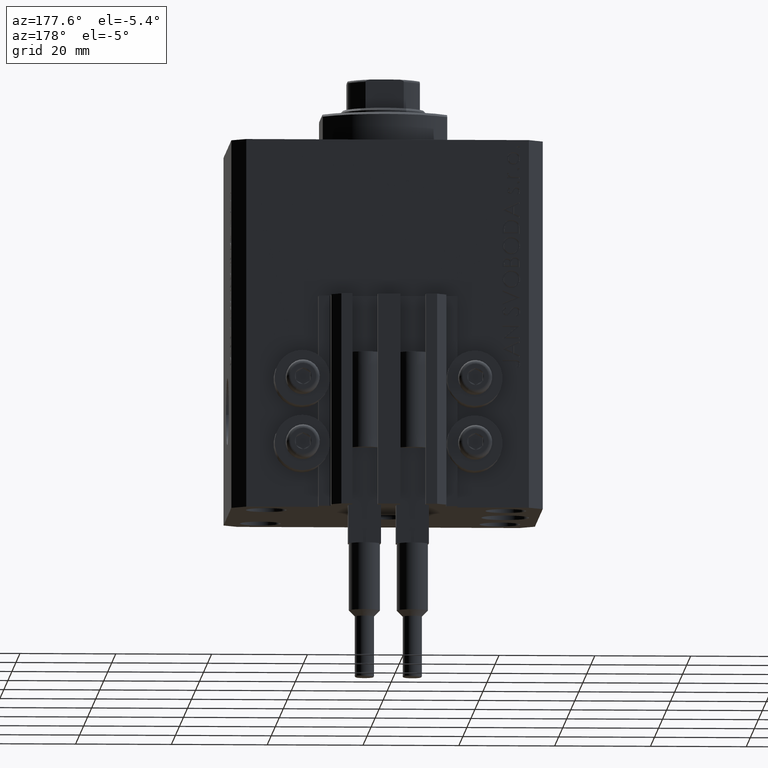
[diagram: clean part render]
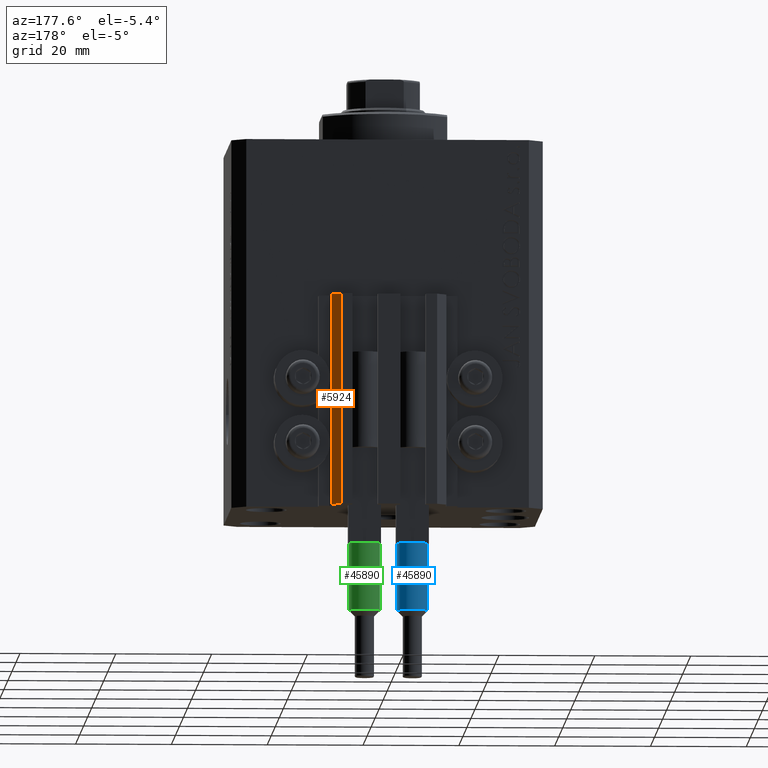
[diagram: same view with three faces highlighted in distinct colors, each labeled with its STEP entity id]
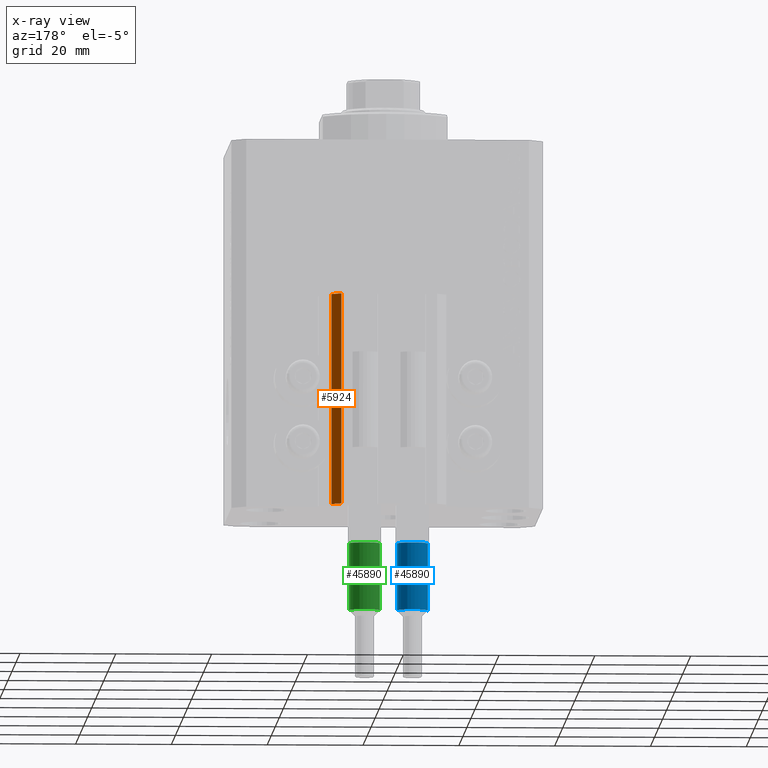
[diagram: x-ray of the same camera — body ghosted, the three highlighted faces saturated]
A machine part, auxiliary view with three faces highlighted in distinct colors.
The next image is the same camera in x-ray (body ghosted, the three faces saturated) — at least one of them is partly hidden behind the body in this view.
Their STEP definitions:

[orange] entity #5924 — the highlighted planar face has unit normal (0.7071, 0.7071, 0).
#1865 = CARTESIAN_POINT ( 'NONE',  ( 12.00000000000000178, 28.49999999999950973, -77.00000000000000000 ) ) ;
#3240 = VERTEX_POINT ( 'NONE', #24958 ) ;
#4289 = CARTESIAN_POINT ( 'NONE',  ( 12.00000000000000178, 28.49999999999950973, -33.00000000000000000 ) ) ;
#5306 = VECTOR ( 'NONE', #35090, 1000.000000000000000 ) ;
#5924 = ADVANCED_FACE ( 'NONE', ( #11558 ), #48184, .T. ) ;
#6226 = VERTEX_POINT ( 'NONE', #14928 ) ;
#7648 = DIRECTION ( 'NONE',  ( 0.7071067811865442421, 0.7071067811865509034, -0.000000000000000000 ) ) ;
#8514 = EDGE_CURVE ( 'NONE', #6226, #45800, #23628, .T. ) ;
#10564 = EDGE_CURVE ( 'NONE', #23452, #3240, #16522, .T. ) ;
#11558 = FACE_OUTER_BOUND ( 'NONE', #21356, .T. ) ;
#12060 = ORIENTED_EDGE ( 'NONE', *, *, #10564, .F. ) ;
#12344 = VECTOR ( 'NONE', #38965, 1000.000000000000000 ) ;
#14751 = CARTESIAN_POINT ( 'NONE',  ( 12.00000000000000178, 28.49999999999950973, -77.00000000000000000 ) ) ;
#14807 = DIRECTION ( 'NONE',  ( -0.7071067811865507924, 0.7071067811865441310, 0.000000000000000000 ) ) ;
#14928 = CARTESIAN_POINT ( 'NONE',  ( 9.999999999999994671, 30.49999999999949551, -77.00000000000000000 ) ) ;
#16522 = LINE ( 'NONE', #1865, #12344 ) ;
#18644 = DIRECTION ( 'NONE',  ( -0.7071067811865507924, 0.7071067811865441310, 0.000000000000000000 ) ) ;
#18747 = ORIENTED_EDGE ( 'NONE', *, *, #8514, .T. ) ;
#19119 = EDGE_CURVE ( 'NONE', #23452, #6226, #19514, .T. ) ;
#19514 = LINE ( 'NONE', #29791, #45071 ) ;
#21312 = ORIENTED_EDGE ( 'NONE', *, *, #21841, .F. ) ;
#21356 = EDGE_LOOP ( 'NONE', ( #21312, #12060, #43227, #18747 ) ) ;
#21841 = EDGE_CURVE ( 'NONE', #3240, #45800, #22603, .T. ) ;
#22603 = LINE ( 'NONE', #4289, #38157 ) ;
#22933 = DIRECTION ( 'NONE',  ( -0.7071067811865507924, 0.7071067811865441310, 0.000000000000000000 ) ) ;
#23452 = VERTEX_POINT ( 'NONE', #25862 ) ;
#23628 = LINE ( 'NONE', #27763, #5306 ) ;
#24958 = CARTESIAN_POINT ( 'NONE',  ( 12.00000000000000178, 28.49999999999950973, -33.00000000000000000 ) ) ;
#25862 = CARTESIAN_POINT ( 'NONE',  ( 12.00000000000000178, 28.49999999999950973, -77.00000000000000000 ) ) ;
#26287 = AXIS2_PLACEMENT_3D ( 'NONE', #14751, #7648, #18644 ) ;
#27763 = CARTESIAN_POINT ( 'NONE',  ( 9.999999999999994671, 30.49999999999949551, -77.00000000000000000 ) ) ;
#29791 = CARTESIAN_POINT ( 'NONE',  ( 12.00000000000000178, 28.49999999999950973, -77.00000000000000000 ) ) ;
#35090 = DIRECTION ( 'NONE',  ( 0.000000000000000000, 0.000000000000000000, 1.000000000000000000 ) ) ;
#38157 = VECTOR ( 'NONE', #14807, 1000.000000000000000 ) ;
#38965 = DIRECTION ( 'NONE',  ( 0.000000000000000000, 0.000000000000000000, 1.000000000000000000 ) ) ;
#43227 = ORIENTED_EDGE ( 'NONE', *, *, #19119, .T. ) ;
#44124 = CARTESIAN_POINT ( 'NONE',  ( 9.999999999999994671, 30.49999999999949551, -33.00000000000000000 ) ) ;
#45071 = VECTOR ( 'NONE', #22933, 1000.000000000000000 ) ;
#45800 = VERTEX_POINT ( 'NONE', #44124 ) ;
#48184 = PLANE ( 'NONE',  #26287 ) ;

[blue] entity #45890 — the highlighted cylindrical surface (edge-blend (fillet) strip) has radius 3.25 mm, axis along (-0, -0, 1).
#454 = CARTESIAN_POINT ( 'NONE',  ( 0.000000000000000000, 0.000000000000000000, 53.99999999999998579 ) ) ;
#707 = CARTESIAN_POINT ( 'NONE',  ( -3.250000000000000444, 0.000000000000000000, 40.00000000000000000 ) ) ;
#812 = EDGE_CURVE ( 'NONE', #6651, #42726, #28292, .T. ) ;
#1788 = ORIENTED_EDGE ( 'NONE', *, *, #4661, .T. ) ;
#3568 = VECTOR ( 'NONE', #10389, 1000.000000000000000 ) ;
#4661 = EDGE_CURVE ( 'NONE', #36638, #44242, #44927, .T. ) ;
#5337 = VECTOR ( 'NONE', #20641, 1000.000000000000000 ) ;
#5755 = CARTESIAN_POINT ( 'NONE',  ( 3.250000000000000444, 3.980102097228898231E-16, 56.00000000000000000 ) ) ;
#6431 = DIRECTION ( 'NONE',  ( 0.000000000000000000, 0.000000000000000000, 1.000000000000000000 ) ) ;
#6651 = VERTEX_POINT ( 'NONE', #42885 ) ;
#7557 = EDGE_CURVE ( 'NONE', #44242, #30755, #8404, .T. ) ;
#7656 = EDGE_CURVE ( 'NONE', #30755, #45158, #15407, .T. ) ;
#8404 = CIRCLE ( 'NONE', #32540, 3.250000000000000444 ) ;
#8771 = DIRECTION ( 'NONE',  ( 0.000000000000000000, 0.000000000000000000, 1.000000000000000000 ) ) ;
#9091 = FACE_OUTER_BOUND ( 'NONE', #22226, .T. ) ;
#9427 = LINE ( 'NONE', #5755, #5337 ) ;
#10220 = ORIENTED_EDGE ( 'NONE', *, *, #812, .T. ) ;
#10389 = DIRECTION ( 'NONE',  ( -0.000000000000000000, -0.000000000000000000, -1.000000000000000000 ) ) ;
#10653 = EDGE_CURVE ( 'NONE', #6651, #45158, #9427, .T. ) ;
#11045 = CARTESIAN_POINT ( 'NONE',  ( 3.250000000000000444, 3.980102097228898231E-16, 40.00000000000000000 ) ) ;
#11711 = DIRECTION ( 'NONE',  ( 1.000000000000000000, 0.000000000000000000, 0.000000000000000000 ) ) ;
#15407 = CIRCLE ( 'NONE', #39531, 3.250000000000000444 ) ;
#16855 = AXIS2_PLACEMENT_3D ( 'NONE', #35113, #8771, #30722 ) ;
#20084 = DIRECTION ( 'NONE',  ( -1.000000000000000000, 0.000000000000000000, 0.000000000000000000 ) ) ;
#20476 = ORIENTED_EDGE ( 'NONE', *, *, #7557, .T. ) ;
#20641 = DIRECTION ( 'NONE',  ( -0.000000000000000000, -0.000000000000000000, -1.000000000000000000 ) ) ;
#22041 = CARTESIAN_POINT ( 'NONE',  ( 2.883140648667699146, -1.500000000000000000, 40.00000000000000000 ) ) ;
#22226 = EDGE_LOOP ( 'NONE', ( #30823, #10220, #30240, #1788, #20476, #36824 ) ) ;
#24487 = DIRECTION ( 'NONE',  ( 1.000000000000000000, 0.000000000000000000, 0.000000000000000000 ) ) ;
#25790 = AXIS2_PLACEMENT_3D ( 'NONE', #45725, #45485, #20084 ) ;
#27645 = CYLINDRICAL_SURFACE ( 'NONE', #25790, 3.250000000000000444 ) ;
#28292 = CIRCLE ( 'NONE', #43936, 3.250000000000000444 ) ;
#28898 = DIRECTION ( 'NONE',  ( 0.000000000000000000, 0.000000000000000000, 1.000000000000000000 ) ) ;
#30236 = DIRECTION ( 'NONE',  ( 0.000000000000000000, 0.000000000000000000, -1.000000000000000000 ) ) ;
#30240 = ORIENTED_EDGE ( 'NONE', *, *, #35939, .T. ) ;
#30722 = DIRECTION ( 'NONE',  ( 1.000000000000000000, 0.000000000000000000, 0.000000000000000000 ) ) ;
#30755 = VERTEX_POINT ( 'NONE', #22041 ) ;
#30823 = ORIENTED_EDGE ( 'NONE', *, *, #10653, .F. ) ;
#32540 = AXIS2_PLACEMENT_3D ( 'NONE', #43793, #28898, #24487 ) ;
#35113 = CARTESIAN_POINT ( 'NONE',  ( 0.000000000000000000, 0.000000000000000000, 40.00000000000000000 ) ) ;
#35939 = EDGE_CURVE ( 'NONE', #42726, #36638, #44065, .T. ) ;
#36200 = DIRECTION ( 'NONE',  ( 1.000000000000000000, 0.000000000000000000, 0.000000000000000000 ) ) ;
#36402 = CARTESIAN_POINT ( 'NONE',  ( -2.883140648667699146, -1.500000000000000000, 40.00000000000000000 ) ) ;
#36638 = VERTEX_POINT ( 'NONE', #707 ) ;
#36824 = ORIENTED_EDGE ( 'NONE', *, *, #7656, .T. ) ;
#39531 = AXIS2_PLACEMENT_3D ( 'NONE', #39870, #6431, #36200 ) ;
#39870 = CARTESIAN_POINT ( 'NONE',  ( 0.000000000000000000, 0.000000000000000000, 40.00000000000000000 ) ) ;
#40393 = CARTESIAN_POINT ( 'NONE',  ( -3.250000000000000444, 0.000000000000000000, 56.00000000000000000 ) ) ;
#40625 = CARTESIAN_POINT ( 'NONE',  ( -3.250000000000000444, 0.000000000000000000, 53.99999999999998579 ) ) ;
#42726 = VERTEX_POINT ( 'NONE', #40625 ) ;
#42885 = CARTESIAN_POINT ( 'NONE',  ( 3.250000000000000444, 3.980102097228898231E-16, 53.99999999999998579 ) ) ;
#43793 = CARTESIAN_POINT ( 'NONE',  ( 0.000000000000000000, 0.000000000000000000, 40.00000000000000000 ) ) ;
#43936 = AXIS2_PLACEMENT_3D ( 'NONE', #454, #30236, #11711 ) ;
#44065 = LINE ( 'NONE', #40393, #3568 ) ;
#44242 = VERTEX_POINT ( 'NONE', #36402 ) ;
#44927 = CIRCLE ( 'NONE', #16855, 3.250000000000000444 ) ;
#45158 = VERTEX_POINT ( 'NONE', #11045 ) ;
#45485 = DIRECTION ( 'NONE',  ( -0.000000000000000000, -0.000000000000000000, -1.000000000000000000 ) ) ;
#45725 = CARTESIAN_POINT ( 'NONE',  ( 0.000000000000000000, 0.000000000000000000, 56.00000000000000000 ) ) ;
#45890 = ADVANCED_FACE ( 'NONE', ( #9091 ), #27645, .T. ) ;

[green] entity #45890 — the highlighted cylindrical surface (edge-blend (fillet) strip) has radius 3.25 mm, axis along (-0, -0, 1).
#454 = CARTESIAN_POINT ( 'NONE',  ( 0.000000000000000000, 0.000000000000000000, 53.99999999999998579 ) ) ;
#707 = CARTESIAN_POINT ( 'NONE',  ( -3.250000000000000444, 0.000000000000000000, 40.00000000000000000 ) ) ;
#812 = EDGE_CURVE ( 'NONE', #6651, #42726, #28292, .T. ) ;
#1788 = ORIENTED_EDGE ( 'NONE', *, *, #4661, .T. ) ;
#3568 = VECTOR ( 'NONE', #10389, 1000.000000000000000 ) ;
#4661 = EDGE_CURVE ( 'NONE', #36638, #44242, #44927, .T. ) ;
#5337 = VECTOR ( 'NONE', #20641, 1000.000000000000000 ) ;
#5755 = CARTESIAN_POINT ( 'NONE',  ( 3.250000000000000444, 3.980102097228898231E-16, 56.00000000000000000 ) ) ;
#6431 = DIRECTION ( 'NONE',  ( 0.000000000000000000, 0.000000000000000000, 1.000000000000000000 ) ) ;
#6651 = VERTEX_POINT ( 'NONE', #42885 ) ;
#7557 = EDGE_CURVE ( 'NONE', #44242, #30755, #8404, .T. ) ;
#7656 = EDGE_CURVE ( 'NONE', #30755, #45158, #15407, .T. ) ;
#8404 = CIRCLE ( 'NONE', #32540, 3.250000000000000444 ) ;
#8771 = DIRECTION ( 'NONE',  ( 0.000000000000000000, 0.000000000000000000, 1.000000000000000000 ) ) ;
#9091 = FACE_OUTER_BOUND ( 'NONE', #22226, .T. ) ;
#9427 = LINE ( 'NONE', #5755, #5337 ) ;
#10220 = ORIENTED_EDGE ( 'NONE', *, *, #812, .T. ) ;
#10389 = DIRECTION ( 'NONE',  ( -0.000000000000000000, -0.000000000000000000, -1.000000000000000000 ) ) ;
#10653 = EDGE_CURVE ( 'NONE', #6651, #45158, #9427, .T. ) ;
#11045 = CARTESIAN_POINT ( 'NONE',  ( 3.250000000000000444, 3.980102097228898231E-16, 40.00000000000000000 ) ) ;
#11711 = DIRECTION ( 'NONE',  ( 1.000000000000000000, 0.000000000000000000, 0.000000000000000000 ) ) ;
#15407 = CIRCLE ( 'NONE', #39531, 3.250000000000000444 ) ;
#16855 = AXIS2_PLACEMENT_3D ( 'NONE', #35113, #8771, #30722 ) ;
#20084 = DIRECTION ( 'NONE',  ( -1.000000000000000000, 0.000000000000000000, 0.000000000000000000 ) ) ;
#20476 = ORIENTED_EDGE ( 'NONE', *, *, #7557, .T. ) ;
#20641 = DIRECTION ( 'NONE',  ( -0.000000000000000000, -0.000000000000000000, -1.000000000000000000 ) ) ;
#22041 = CARTESIAN_POINT ( 'NONE',  ( 2.883140648667699146, -1.500000000000000000, 40.00000000000000000 ) ) ;
#22226 = EDGE_LOOP ( 'NONE', ( #30823, #10220, #30240, #1788, #20476, #36824 ) ) ;
#24487 = DIRECTION ( 'NONE',  ( 1.000000000000000000, 0.000000000000000000, 0.000000000000000000 ) ) ;
#25790 = AXIS2_PLACEMENT_3D ( 'NONE', #45725, #45485, #20084 ) ;
#27645 = CYLINDRICAL_SURFACE ( 'NONE', #25790, 3.250000000000000444 ) ;
#28292 = CIRCLE ( 'NONE', #43936, 3.250000000000000444 ) ;
#28898 = DIRECTION ( 'NONE',  ( 0.000000000000000000, 0.000000000000000000, 1.000000000000000000 ) ) ;
#30236 = DIRECTION ( 'NONE',  ( 0.000000000000000000, 0.000000000000000000, -1.000000000000000000 ) ) ;
#30240 = ORIENTED_EDGE ( 'NONE', *, *, #35939, .T. ) ;
#30722 = DIRECTION ( 'NONE',  ( 1.000000000000000000, 0.000000000000000000, 0.000000000000000000 ) ) ;
#30755 = VERTEX_POINT ( 'NONE', #22041 ) ;
#30823 = ORIENTED_EDGE ( 'NONE', *, *, #10653, .F. ) ;
#32540 = AXIS2_PLACEMENT_3D ( 'NONE', #43793, #28898, #24487 ) ;
#35113 = CARTESIAN_POINT ( 'NONE',  ( 0.000000000000000000, 0.000000000000000000, 40.00000000000000000 ) ) ;
#35939 = EDGE_CURVE ( 'NONE', #42726, #36638, #44065, .T. ) ;
#36200 = DIRECTION ( 'NONE',  ( 1.000000000000000000, 0.000000000000000000, 0.000000000000000000 ) ) ;
#36402 = CARTESIAN_POINT ( 'NONE',  ( -2.883140648667699146, -1.500000000000000000, 40.00000000000000000 ) ) ;
#36638 = VERTEX_POINT ( 'NONE', #707 ) ;
#36824 = ORIENTED_EDGE ( 'NONE', *, *, #7656, .T. ) ;
#39531 = AXIS2_PLACEMENT_3D ( 'NONE', #39870, #6431, #36200 ) ;
#39870 = CARTESIAN_POINT ( 'NONE',  ( 0.000000000000000000, 0.000000000000000000, 40.00000000000000000 ) ) ;
#40393 = CARTESIAN_POINT ( 'NONE',  ( -3.250000000000000444, 0.000000000000000000, 56.00000000000000000 ) ) ;
#40625 = CARTESIAN_POINT ( 'NONE',  ( -3.250000000000000444, 0.000000000000000000, 53.99999999999998579 ) ) ;
#42726 = VERTEX_POINT ( 'NONE', #40625 ) ;
#42885 = CARTESIAN_POINT ( 'NONE',  ( 3.250000000000000444, 3.980102097228898231E-16, 53.99999999999998579 ) ) ;
#43793 = CARTESIAN_POINT ( 'NONE',  ( 0.000000000000000000, 0.000000000000000000, 40.00000000000000000 ) ) ;
#43936 = AXIS2_PLACEMENT_3D ( 'NONE', #454, #30236, #11711 ) ;
#44065 = LINE ( 'NONE', #40393, #3568 ) ;
#44242 = VERTEX_POINT ( 'NONE', #36402 ) ;
#44927 = CIRCLE ( 'NONE', #16855, 3.250000000000000444 ) ;
#45158 = VERTEX_POINT ( 'NONE', #11045 ) ;
#45485 = DIRECTION ( 'NONE',  ( -0.000000000000000000, -0.000000000000000000, -1.000000000000000000 ) ) ;
#45725 = CARTESIAN_POINT ( 'NONE',  ( 0.000000000000000000, 0.000000000000000000, 56.00000000000000000 ) ) ;
#45890 = ADVANCED_FACE ( 'NONE', ( #9091 ), #27645, .T. ) ;